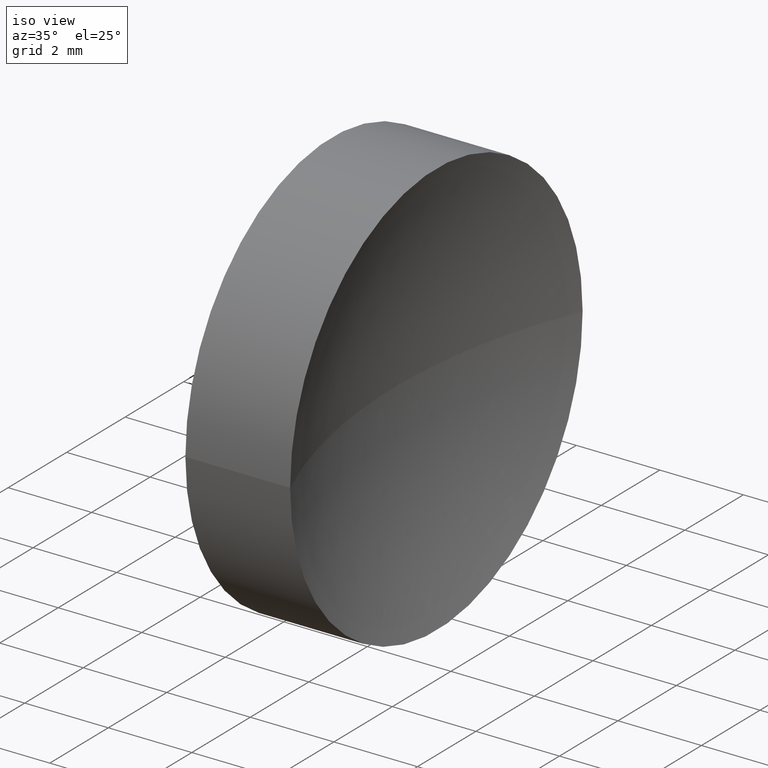
[diagram: clean part render]
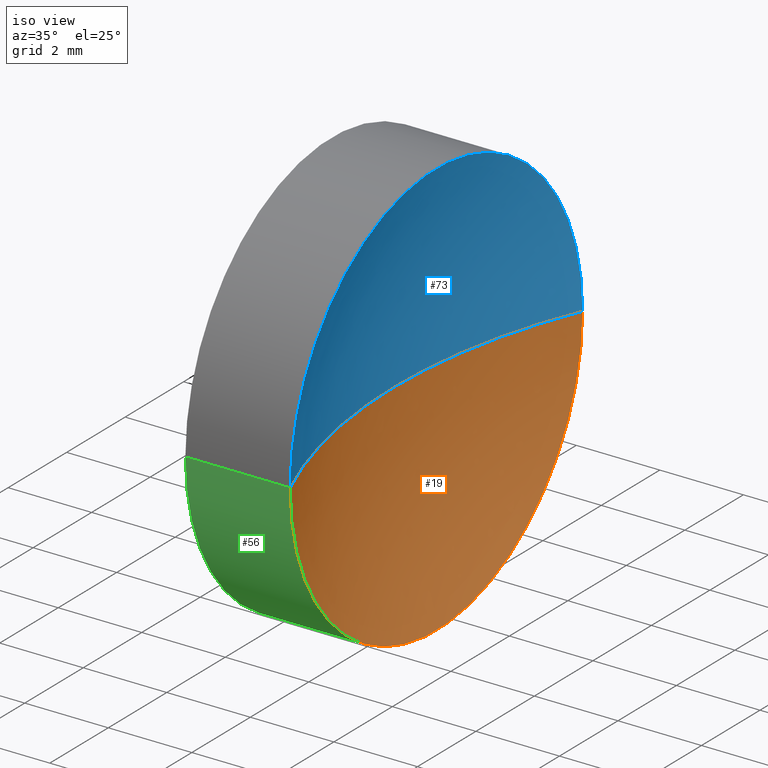
[diagram: same view with three faces highlighted in distinct colors, each labeled with its STEP entity id]
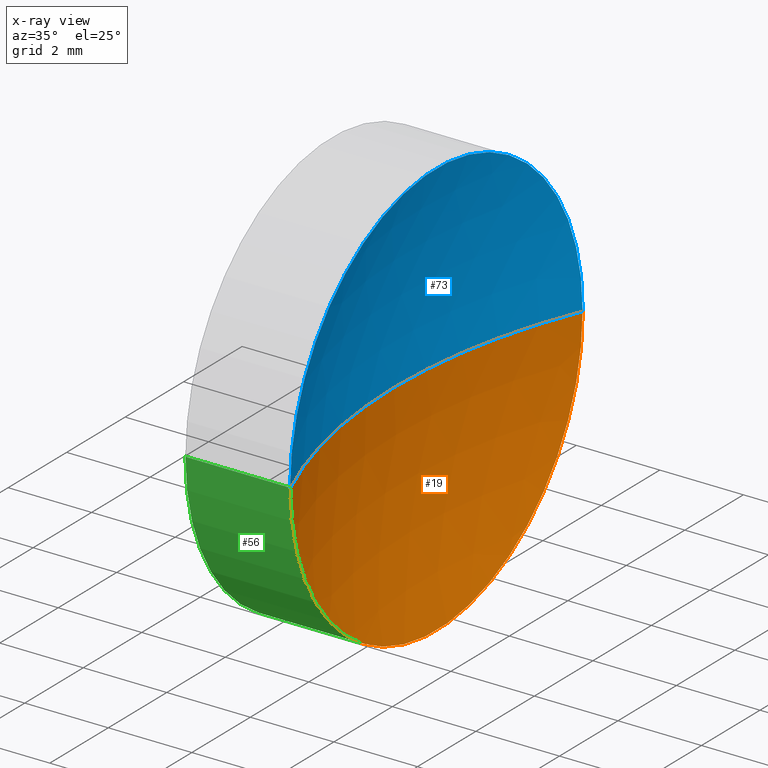
[diagram: x-ray of the same camera — body ghosted, the three highlighted faces saturated]
A machine part, iso view with three faces highlighted in distinct colors.
The next image is the same camera in x-ray (body ghosted, the three faces saturated) — at least one of them is partly hidden behind the body in this view.
Their STEP definitions:

[orange] entity #19 — the highlighted spherical surface has radius 12.91 mm.
#3 = CIRCLE ( 'NONE', #47, 12.91000000000000500 ) ;
#11 = ORIENTED_EDGE ( 'NONE', *, *, #96, .T. ) ;
#14 = VERTEX_POINT ( 'NONE', #17 ) ;
#17 = CARTESIAN_POINT ( 'NONE',  ( 24.93179112749126200, 8.031126091403027800, -6.123233995736775200E-016 ) ) ;
#19 = ADVANCED_FACE ( 'NONE', ( #45 ), #68, .F. ) ;
#25 = VERTEX_POINT ( 'NONE', #150 ) ;
#40 = CARTESIAN_POINT ( 'NONE',  ( 36.83423205362066000, 13.03112609140303100, 0.0000000000000000000 ) ) ;
#44 = CARTESIAN_POINT ( 'NONE',  ( 36.83423205362066000, 13.03112609140303100, 0.0000000000000000000 ) ) ;
#45 = FACE_OUTER_BOUND ( 'NONE', #110, .T. ) ;
#47 = AXIS2_PLACEMENT_3D ( 'NONE', #44, #138, #89 ) ;
#51 = DIRECTION ( 'NONE',  ( 5.374820994505984400E-016, 1.000000000000000000, 0.0000000000000000000 ) ) ;
#52 = DIRECTION ( 'NONE',  ( 0.0000000000000000000, 0.0000000000000000000, 1.000000000000000000 ) ) ;
#55 = DIRECTION ( 'NONE',  ( -1.000000000000000000, 3.159171411554934600E-016, -0.0000000000000000000 ) ) ;
#68 = SPHERICAL_SURFACE ( 'NONE', #164, 12.91000000000000500 ) ;
#70 = CIRCLE ( 'NONE', #105, 12.91000000000000500 ) ;
#77 = DIRECTION ( 'NONE',  ( 1.000000000000000000, 0.0000000000000000000, 0.0000000000000000000 ) ) ;
#82 = EDGE_CURVE ( 'NONE', #14, #104, #3, .T. ) ;
#89 = DIRECTION ( 'NONE',  ( 0.0000000000000000000, 1.000000000000000000, 1.224646799147353200E-016 ) ) ;
#96 = EDGE_CURVE ( 'NONE', #25, #104, #70, .T. ) ;
#97 = ORIENTED_EDGE ( 'NONE', *, *, #82, .F. ) ;
#99 = CARTESIAN_POINT ( 'NONE',  ( 36.83423205362066000, 13.03112609140303100, 0.0000000000000000000 ) ) ;
#103 = CARTESIAN_POINT ( 'NONE',  ( 24.93179112749126200, 13.03112609140304000, 0.0000000000000000000 ) ) ;
#104 = VERTEX_POINT ( 'NONE', #128 ) ;
#105 = AXIS2_PLACEMENT_3D ( 'NONE', #40, #52, #77 ) ;
#110 = EDGE_LOOP ( 'NONE', ( #97, #152, #11 ) ) ;
#111 = DIRECTION ( 'NONE',  ( 0.0000000000000000000, 0.0000000000000000000, -1.000000000000000000 ) ) ;
#122 = EDGE_CURVE ( 'NONE', #25, #14, #147, .T. ) ;
#128 = CARTESIAN_POINT ( 'NONE',  ( 23.92423205362065300, 13.03112609140303700, 0.0000000000000000000 ) ) ;
#138 = DIRECTION ( 'NONE',  ( 3.868869157118576300E-032, 1.224646799147353200E-016, -1.000000000000000000 ) ) ;
#142 = DIRECTION ( 'NONE',  ( 0.0000000000000000000, -1.000000000000000000, 0.0000000000000000000 ) ) ;
#147 = CIRCLE ( 'NONE', #163, 5.000000000000002700 ) ;
#150 = CARTESIAN_POINT ( 'NONE',  ( 24.93179112749126600, 18.03112609140304900, 0.0000000000000000000 ) ) ;
#152 = ORIENTED_EDGE ( 'NONE', *, *, #122, .F. ) ;
#163 = AXIS2_PLACEMENT_3D ( 'NONE', #103, #55, #142 ) ;
#164 = AXIS2_PLACEMENT_3D ( 'NONE', #99, #111, #51 ) ;

[blue] entity #73 — the highlighted spherical surface has radius 12.91 mm.
#2 = EDGE_LOOP ( 'NONE', ( #72, #146, #71 ) ) ;
#3 = CIRCLE ( 'NONE', #47, 12.91000000000000500 ) ;
#6 = DIRECTION ( 'NONE',  ( 0.0000000000000000000, -1.000000000000000000, 0.0000000000000000000 ) ) ;
#12 = SPHERICAL_SURFACE ( 'NONE', #59, 12.91000000000000500 ) ;
#14 = VERTEX_POINT ( 'NONE', #17 ) ;
#17 = CARTESIAN_POINT ( 'NONE',  ( 24.93179112749126200, 8.031126091403027800, -6.123233995736775200E-016 ) ) ;
#23 = DIRECTION ( 'NONE',  ( 5.374820994505984400E-016, 1.000000000000000000, 0.0000000000000000000 ) ) ;
#25 = VERTEX_POINT ( 'NONE', #150 ) ;
#26 = FACE_OUTER_BOUND ( 'NONE', #2, .T. ) ;
#40 = CARTESIAN_POINT ( 'NONE',  ( 36.83423205362066000, 13.03112609140303100, 0.0000000000000000000 ) ) ;
#43 = AXIS2_PLACEMENT_3D ( 'NONE', #156, #102, #6 ) ;
#44 = CARTESIAN_POINT ( 'NONE',  ( 36.83423205362066000, 13.03112609140303100, 0.0000000000000000000 ) ) ;
#47 = AXIS2_PLACEMENT_3D ( 'NONE', #44, #138, #89 ) ;
#52 = DIRECTION ( 'NONE',  ( 0.0000000000000000000, 0.0000000000000000000, 1.000000000000000000 ) ) ;
#59 = AXIS2_PLACEMENT_3D ( 'NONE', #91, #158, #23 ) ;
#63 = CIRCLE ( 'NONE', #43, 5.000000000000002700 ) ;
#70 = CIRCLE ( 'NONE', #105, 12.91000000000000500 ) ;
#71 = ORIENTED_EDGE ( 'NONE', *, *, #96, .F. ) ;
#72 = ORIENTED_EDGE ( 'NONE', *, *, #84, .F. ) ;
#73 = ADVANCED_FACE ( 'NONE', ( #26 ), #12, .F. ) ;
#77 = DIRECTION ( 'NONE',  ( 1.000000000000000000, 0.0000000000000000000, 0.0000000000000000000 ) ) ;
#82 = EDGE_CURVE ( 'NONE', #14, #104, #3, .T. ) ;
#84 = EDGE_CURVE ( 'NONE', #14, #25, #63, .T. ) ;
#89 = DIRECTION ( 'NONE',  ( 0.0000000000000000000, 1.000000000000000000, 1.224646799147353200E-016 ) ) ;
#91 = CARTESIAN_POINT ( 'NONE',  ( 36.83423205362066000, 13.03112609140303100, 0.0000000000000000000 ) ) ;
#96 = EDGE_CURVE ( 'NONE', #25, #104, #70, .T. ) ;
#102 = DIRECTION ( 'NONE',  ( -1.000000000000000000, 3.159171411554934600E-016, -0.0000000000000000000 ) ) ;
#104 = VERTEX_POINT ( 'NONE', #128 ) ;
#105 = AXIS2_PLACEMENT_3D ( 'NONE', #40, #52, #77 ) ;
#128 = CARTESIAN_POINT ( 'NONE',  ( 23.92423205362065300, 13.03112609140303700, 0.0000000000000000000 ) ) ;
#138 = DIRECTION ( 'NONE',  ( 3.868869157118576300E-032, 1.224646799147353200E-016, -1.000000000000000000 ) ) ;
#146 = ORIENTED_EDGE ( 'NONE', *, *, #82, .T. ) ;
#150 = CARTESIAN_POINT ( 'NONE',  ( 24.93179112749126600, 18.03112609140304900, 0.0000000000000000000 ) ) ;
#156 = CARTESIAN_POINT ( 'NONE',  ( 24.93179112749126200, 13.03112609140304000, 0.0000000000000000000 ) ) ;
#158 = DIRECTION ( 'NONE',  ( 0.0000000000000000000, 0.0000000000000000000, -1.000000000000000000 ) ) ;

[green] entity #56 — the highlighted cylindrical surface (partial cylindrical patch) has radius 5 mm, axis along (-1, 0, -0).
#8 = CARTESIAN_POINT ( 'NONE',  ( 21.50597511808246100, 18.03112609140304200, 6.123233995736768300E-016 ) ) ;
#14 = VERTEX_POINT ( 'NONE', #17 ) ;
#17 = CARTESIAN_POINT ( 'NONE',  ( 24.93179112749126200, 8.031126091403027800, -6.123233995736775200E-016 ) ) ;
#24 = DIRECTION ( 'NONE',  ( -1.000000000000000000, 3.159171411554934600E-016, -0.0000000000000000000 ) ) ;
#25 = VERTEX_POINT ( 'NONE', #150 ) ;
#32 = CIRCLE ( 'NONE', #145, 5.000000000000000900 ) ;
#33 = CARTESIAN_POINT ( 'NONE',  ( 22.42423205362066000, 8.031126091403040200, 0.0000000000000000000 ) ) ;
#39 = VECTOR ( 'NONE', #78, 1000.000000000000000 ) ;
#42 = CARTESIAN_POINT ( 'NONE',  ( 21.50597511808246100, 8.031126091403040200, 0.0000000000000000000 ) ) ;
#46 = ORIENTED_EDGE ( 'NONE', *, *, #122, .T. ) ;
#49 = FACE_OUTER_BOUND ( 'NONE', #60, .T. ) ;
#53 = DIRECTION ( 'NONE',  ( 0.0000000000000000000, -1.000000000000000000, 0.0000000000000000000 ) ) ;
#55 = DIRECTION ( 'NONE',  ( -1.000000000000000000, 3.159171411554934600E-016, -0.0000000000000000000 ) ) ;
#56 = ADVANCED_FACE ( 'NONE', ( #49 ), #134, .T. ) ;
#60 = EDGE_LOOP ( 'NONE', ( #75, #46, #125, #139 ) ) ;
#75 = ORIENTED_EDGE ( 'NONE', *, *, #119, .F. ) ;
#76 = CARTESIAN_POINT ( 'NONE',  ( 22.42423205362066000, 13.03112609140304200, 0.0000000000000000000 ) ) ;
#78 = DIRECTION ( 'NONE',  ( -1.000000000000000000, 3.159171411554934600E-016, -0.0000000000000000000 ) ) ;
#79 = CARTESIAN_POINT ( 'NONE',  ( 22.42423205362066000, 18.03112609140304200, 6.123233995736768300E-016 ) ) ;
#85 = VERTEX_POINT ( 'NONE', #33 ) ;
#86 = DIRECTION ( 'NONE',  ( -1.000000000000000000, 3.159171411554934600E-016, -0.0000000000000000000 ) ) ;
#92 = AXIS2_PLACEMENT_3D ( 'NONE', #100, #127, #53 ) ;
#100 = CARTESIAN_POINT ( 'NONE',  ( 21.50597511808246100, 13.03112609140304200, 0.0000000000000000000 ) ) ;
#101 = DIRECTION ( 'NONE',  ( 0.0000000000000000000, -1.000000000000000000, 0.0000000000000000000 ) ) ;
#103 = CARTESIAN_POINT ( 'NONE',  ( 24.93179112749126200, 13.03112609140304000, 0.0000000000000000000 ) ) ;
#108 = LINE ( 'NONE', #8, #159 ) ;
#112 = VERTEX_POINT ( 'NONE', #79 ) ;
#119 = EDGE_CURVE ( 'NONE', #25, #112, #108, .T. ) ;
#122 = EDGE_CURVE ( 'NONE', #25, #14, #147, .T. ) ;
#125 = ORIENTED_EDGE ( 'NONE', *, *, #148, .T. ) ;
#127 = DIRECTION ( 'NONE',  ( -1.000000000000000000, 3.159171411554934600E-016, -0.0000000000000000000 ) ) ;
#134 = CYLINDRICAL_SURFACE ( 'NONE', #92, 5.000000000000000900 ) ;
#139 = ORIENTED_EDGE ( 'NONE', *, *, #149, .F. ) ;
#142 = DIRECTION ( 'NONE',  ( 0.0000000000000000000, -1.000000000000000000, 0.0000000000000000000 ) ) ;
#145 = AXIS2_PLACEMENT_3D ( 'NONE', #76, #24, #101 ) ;
#147 = CIRCLE ( 'NONE', #163, 5.000000000000002700 ) ;
#148 = EDGE_CURVE ( 'NONE', #14, #85, #162, .T. ) ;
#149 = EDGE_CURVE ( 'NONE', #112, #85, #32, .T. ) ;
#150 = CARTESIAN_POINT ( 'NONE',  ( 24.93179112749126600, 18.03112609140304900, 0.0000000000000000000 ) ) ;
#159 = VECTOR ( 'NONE', #86, 1000.000000000000000 ) ;
#162 = LINE ( 'NONE', #42, #39 ) ;
#163 = AXIS2_PLACEMENT_3D ( 'NONE', #103, #55, #142 ) ;